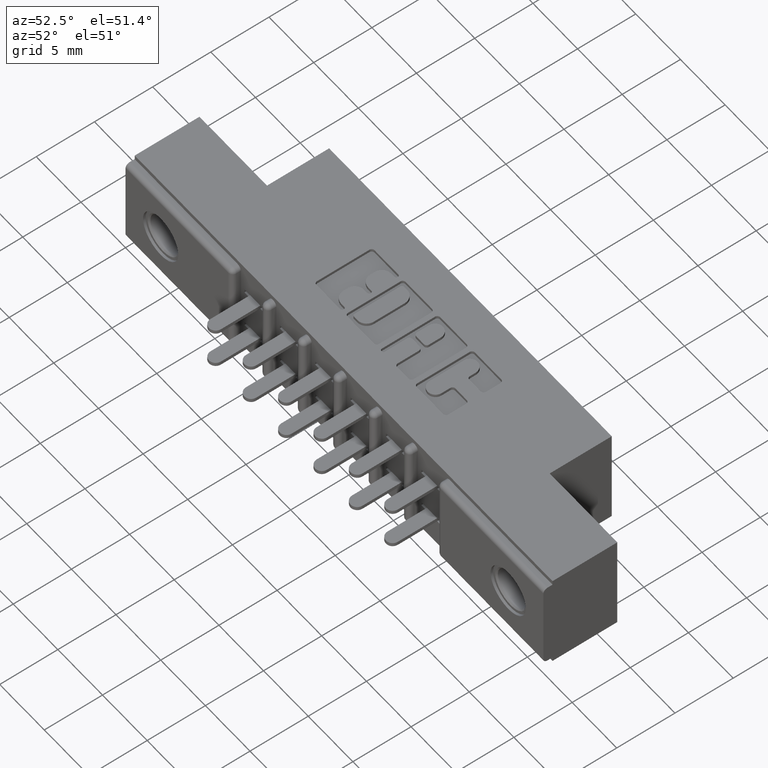
[diagram: clean part render]
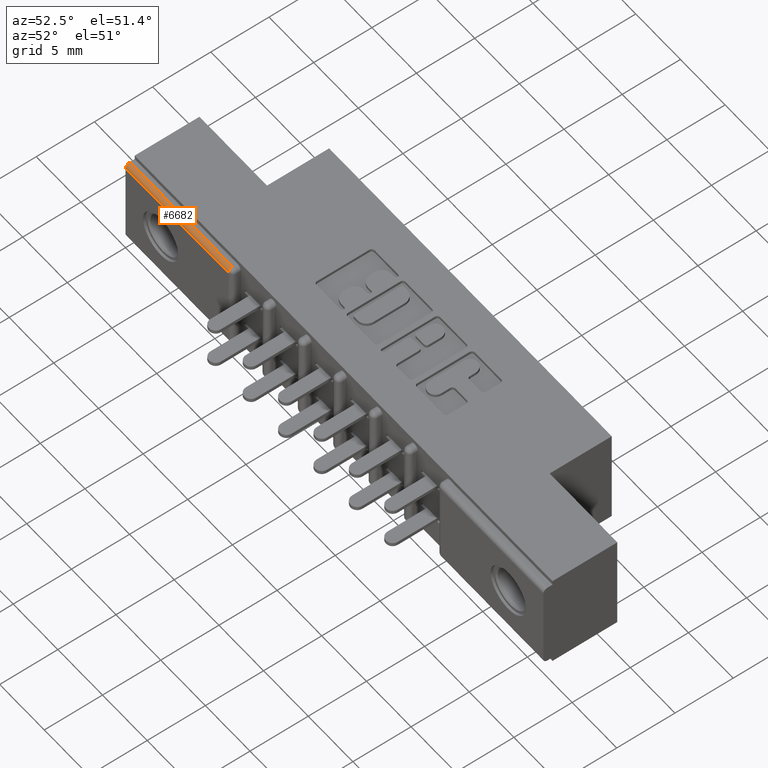
[diagram: same view with one face highlighted and labeled with its STEP entity id]
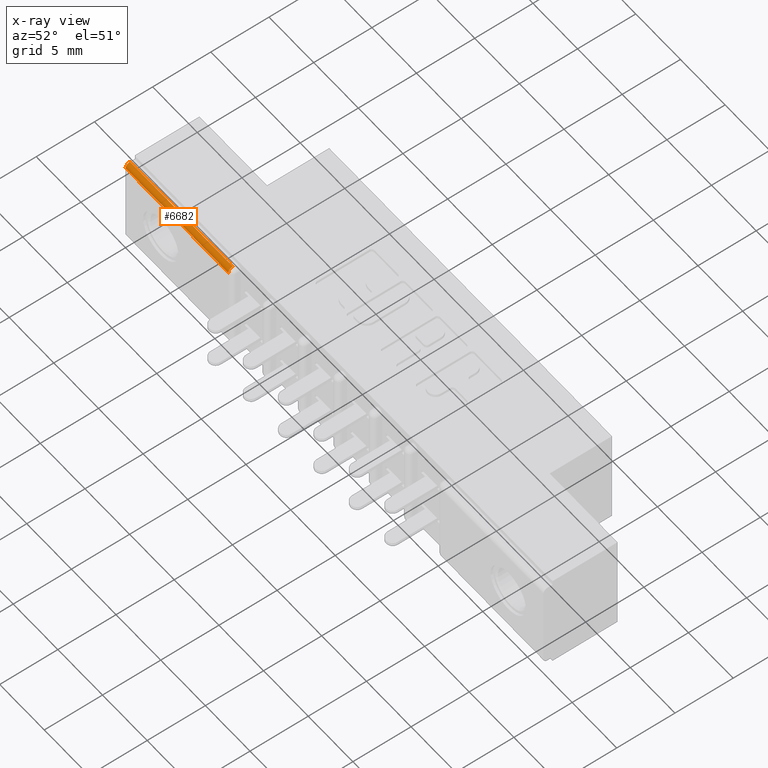
[diagram: x-ray of the same camera — body ghosted, the highlighted face saturated]
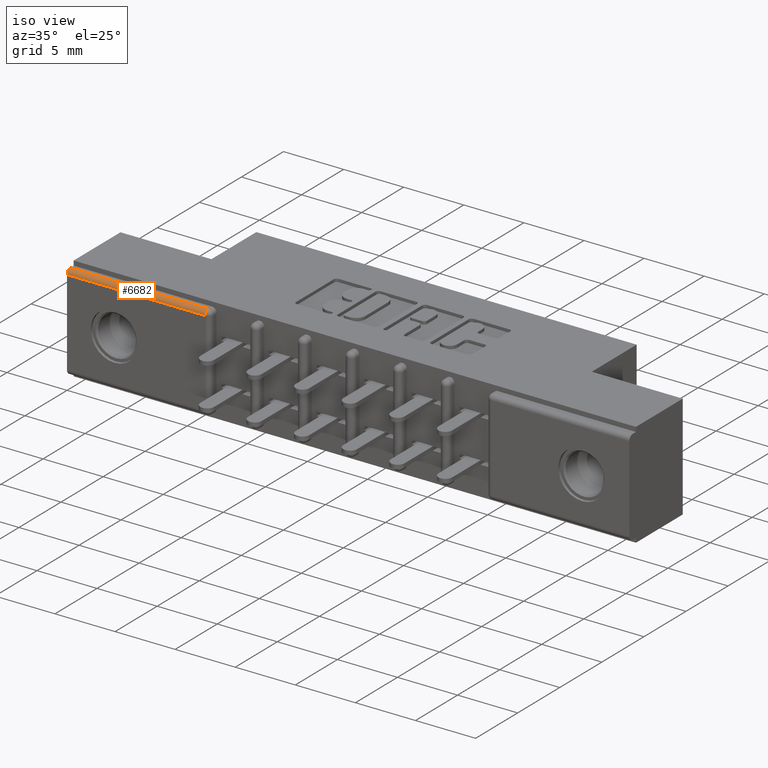
[diagram: same view with one face highlighted and labeled with its STEP entity id]
A machine part, auxiliary view. The second image highlights one B-rep face of the part: STEP entity #6682.
The next image is the same camera in x-ray: the body ghosted, the highlighted face saturated — about 0% of this face is hidden behind the body in this view.
A second angle (iso view) of the same face is appended — the face is thin or edge-on in the first view.
In plain terms, the highlighted cylindrical surface (edge-blend (fillet) strip) has radius 0.381 mm, axis along (1, 0, 0).
Its self-contained STEP definition (entity closure, byte-faithful):
#193 = AXIS2_PLACEMENT_3D ( 'NONE', #10721, #489, #11661 ) ;
#489 = DIRECTION ( 'NONE',  ( -1.000000000000000000, 0.0000000000000000000, -0.0000000000000000000 ) ) ;
#1461 = AXIS2_PLACEMENT_3D ( 'NONE', #8275, #2765, #9197 ) ;
#2703 = VECTOR ( 'NONE', #6175, 39.37007874015748100 ) ;
#2765 = DIRECTION ( 'NONE',  ( -1.000000000000000000, -0.0000000000000000000, -0.0000000000000000000 ) ) ;
#2895 = FACE_OUTER_BOUND ( 'NONE', #3113, .T. ) ;
#3099 = CARTESIAN_POINT ( 'NONE',  ( 0.0000000000000000000, 0.01499999999999999900, -0.01499999999999997700 ) ) ;
#3113 = EDGE_LOOP ( 'NONE', ( #5993, #6757, #4553, #3341 ) ) ;
#3341 = ORIENTED_EDGE ( 'NONE', *, *, #4764, .F. ) ;
#3471 = VERTEX_POINT ( 'NONE', #5350 ) ;
#3867 = VECTOR ( 'NONE', #11081, 39.37007874015748100 ) ;
#3963 = CARTESIAN_POINT ( 'NONE',  ( 0.4530000000000004000, 0.0000000000000000000, -0.02999999999999995400 ) ) ;
#4477 = CARTESIAN_POINT ( 'NONE',  ( 0.0000000000000000000, 0.0000000000000000000, -0.02999999999999995400 ) ) ;
#4553 = ORIENTED_EDGE ( 'NONE', *, *, #11433, .F. ) ;
#4584 = LINE ( 'NONE', #4636, #3867 ) ;
#4636 = CARTESIAN_POINT ( 'NONE',  ( 1.842000000000000100, 0.01499999999999999900, -0.01499999999999997700 ) ) ;
#4732 = VERTEX_POINT ( 'NONE', #3963 ) ;
#4764 = EDGE_CURVE ( 'NONE', #9097, #11785, #10746, .T. ) ;
#5350 = CARTESIAN_POINT ( 'NONE',  ( 0.4530000000000003500, 0.01499999999999999900, -0.01499999999999997700 ) ) ;
#5955 = DIRECTION ( 'NONE',  ( 1.000000000000000000, 0.0000000000000000000, 0.0000000000000000000 ) ) ;
#5993 = ORIENTED_EDGE ( 'NONE', *, *, #11170, .F. ) ;
#5994 = DIRECTION ( 'NONE',  ( 0.0000000000000000000, 0.0000000000000000000, -1.000000000000000000 ) ) ;
#6175 = DIRECTION ( 'NONE',  ( -1.000000000000000000, 0.0000000000000000000, 0.0000000000000000000 ) ) ;
#6682 = ADVANCED_FACE ( 'NONE', ( #2895 ), #11256, .T. ) ;
#6757 = ORIENTED_EDGE ( 'NONE', *, *, #10173, .T. ) ;
#6770 = CIRCLE ( 'NONE', #1461, 0.01500000000000000300 ) ;
#7173 = CARTESIAN_POINT ( 'NONE',  ( 0.0000000000000000000, 0.0000000000000000000, -0.02999999999999995400 ) ) ;
#7740 = LINE ( 'NONE', #7173, #2703 ) ;
#8275 = CARTESIAN_POINT ( 'NONE',  ( 0.4530000000000004000, 0.01499999999999999900, -0.02999999999999995400 ) ) ;
#8618 = AXIS2_PLACEMENT_3D ( 'NONE', #10348, #5955, #5994 ) ;
#9097 = VERTEX_POINT ( 'NONE', #4477 ) ;
#9197 = DIRECTION ( 'NONE',  ( 0.0000000000000000000, 8.537024980200820800E-016, -1.000000000000000000 ) ) ;
#10173 = EDGE_CURVE ( 'NONE', #4732, #3471, #6770, .T. ) ;
#10348 = CARTESIAN_POINT ( 'NONE',  ( 0.0000000000000000000, 0.01499999999999999900, -0.02999999999999995400 ) ) ;
#10721 = CARTESIAN_POINT ( 'NONE',  ( 0.0000000000000000000, 0.01499999999999999900, -0.02999999999999995400 ) ) ;
#10746 = CIRCLE ( 'NONE', #193, 0.01500000000000000300 ) ;
#11081 = DIRECTION ( 'NONE',  ( 1.000000000000000000, -0.0000000000000000000, -0.0000000000000000000 ) ) ;
#11170 = EDGE_CURVE ( 'NONE', #4732, #9097, #7740, .T. ) ;
#11256 = CYLINDRICAL_SURFACE ( 'NONE', #8618, 0.01500000000000000300 ) ;
#11433 = EDGE_CURVE ( 'NONE', #11785, #3471, #4584, .T. ) ;
#11661 = DIRECTION ( 'NONE',  ( 0.0000000000000000000, 8.537024980200820800E-016, -1.000000000000000000 ) ) ;
#11785 = VERTEX_POINT ( 'NONE', #3099 ) ;